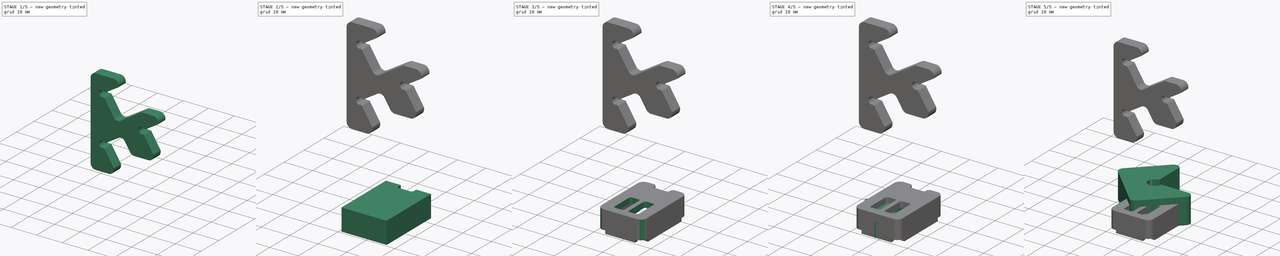
[diagram: build sequence overview — one tinted view per stage of 5, left to right]
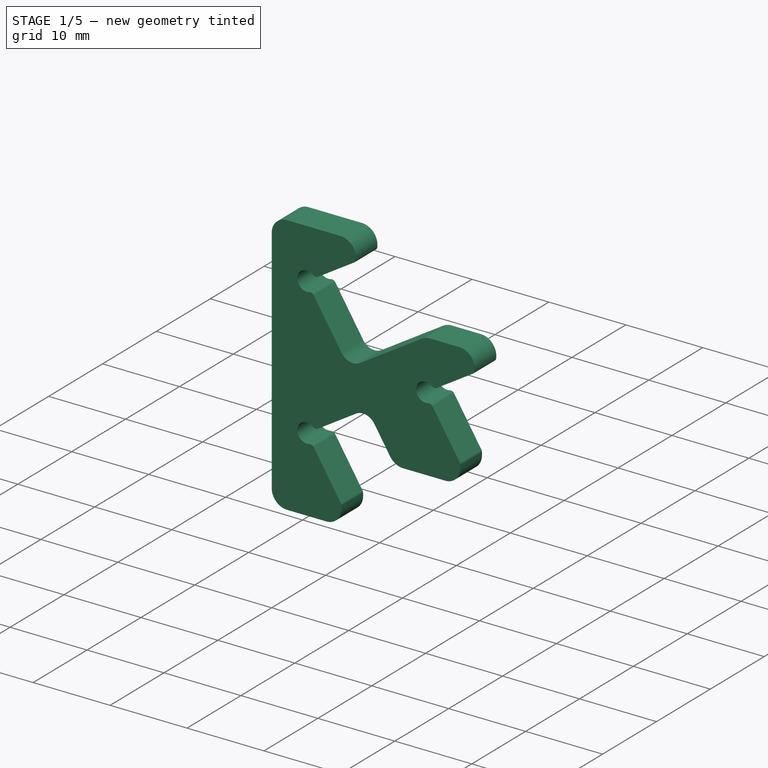
[diagram: stage 1 of 5 — iso view after this stage's code; geometry added in this stage tinted green]
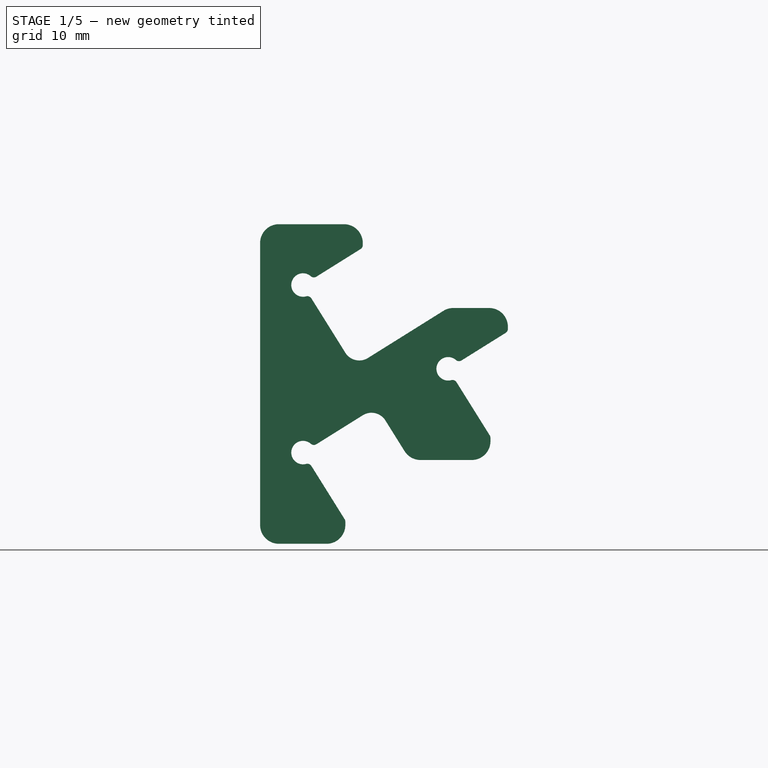
[diagram: stage 1 of 5 — front view after this stage's code; geometry added in this stage tinted green]
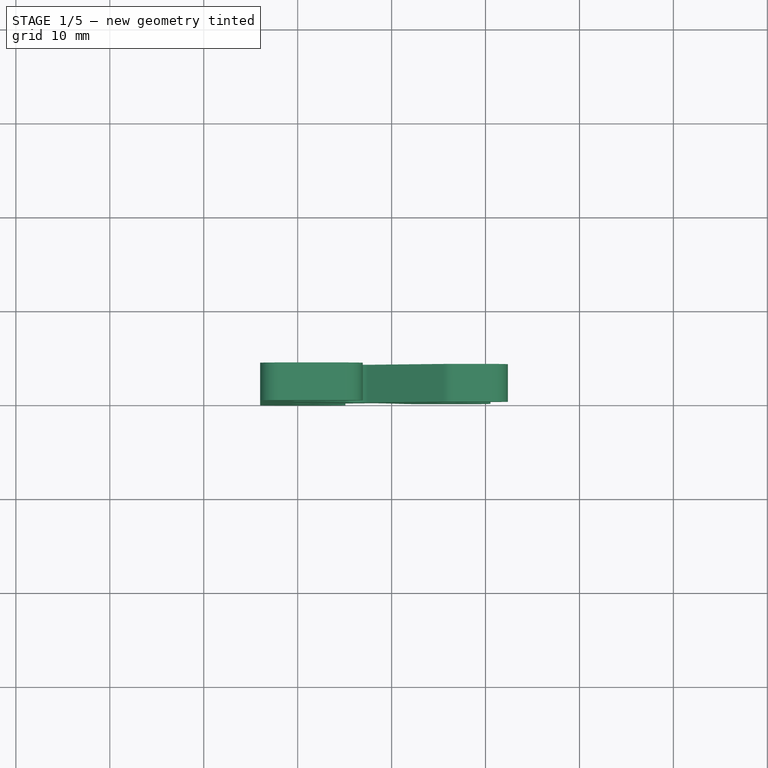
[diagram: stage 1 of 5 — top view after this stage's code; geometry added in this stage tinted green]
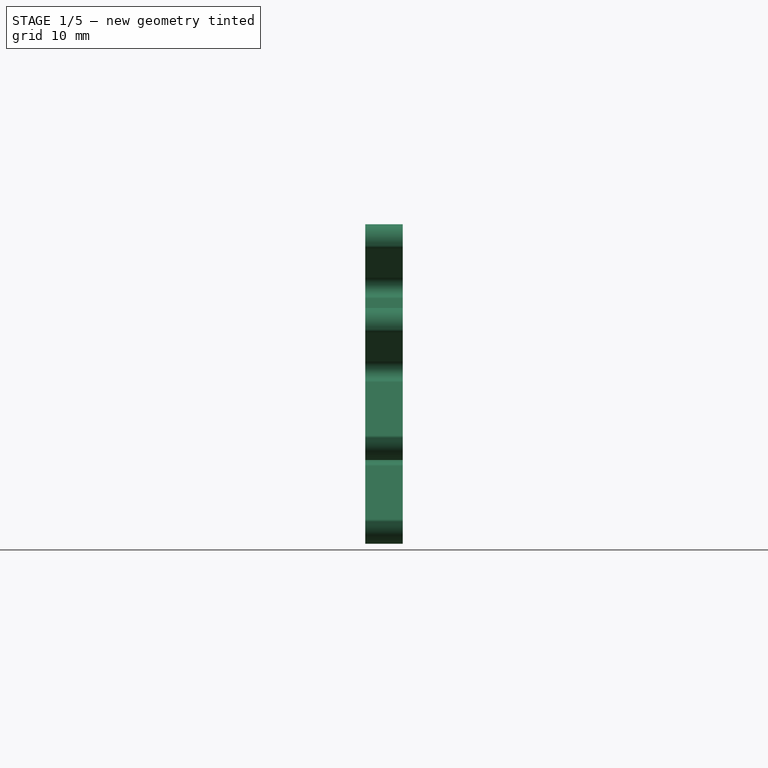
[diagram: stage 1 of 5 — right view after this stage's code; geometry added in this stage tinted green]
FCSTD DOCUMENT  (FreeCAD 1.1R20260223 (Git shallow))
Label: 3DP
License: All rights reserved
LicenseURL: https://en.wikipedia.org/wiki/All_rights_reserved
objects: PartDesign::Fillet×13, Sketcher::SketchObject×12, PartDesign::Pocket×7, App::Point×5, PartDesign::Pad×5, PartDesign::Body×5
note: 104 computed .brp shape members not serialized (recipe doc carries the construction recipe); baked Part::Feature solids carry a one-line shape summary decoded from their .brp

FEATURE [App::Point] Origin047  label="Origin054"
  Role = Origin
FEATURE [Sketcher::SketchObject] Sketch
  ArcFitTolerance = 1e-06
  AttachmentSupport = -> [Origin046]
  ExternalTypes = [0]
  FullyConstrained = true
  MakeInternals = false
  MapMode = 5
  Placement = pos=(0,0,0) rot=(1,0,0;1.5708rad)
  sketch-geometry (38):
    g0: GeomPoint [constr] X=-6.15 Y=54.04 Z=0
    g1: GeomPoint [constr] X=-6.15 Y=36.2 Z=0
    g2: GeomPoint [constr] X=9.3 Y=45.12 Z=0
    g3: LineSegment [constr] StartX=-6.15 StartY=54.04 StartZ=0 EndX=-6.15 EndY=36.2 EndZ=0
    g4: LineSegment StartX=-14 StartY=27.2487 StartZ=0 EndX=-14 EndY=61.2715 EndZ=0
    g5: GeomPoint [constr] X=-8.53 Y=56.42 Z=0
    g6: ArcOfCircle [constr] CenterX=-6.15 CenterY=54.04 CenterZ=0 NormalX=0 NormalY=0 NormalZ=1 AngleXU=0 Radius=3.36583 StartAngle=2.35619 EndAngle=2.9147
    g7: LineSegment [constr] StartX=-9.42956 StartY=54.7971 StartZ=0 EndX=-3.0692 EndY=58.7715 EndZ=0
    g8: LineSegment [constr] StartX=-9.42956 StartY=54.7971 StartZ=0 EndX=-4.92525 EndY=47.5887 EndZ=0
    g9: GeomPoint [constr] X=-8.53 Y=38.58 Z=0
    g10: GeomPoint [constr] X=6.92 Y=47.5 Z=0
    g11: ArcOfCircle [constr] CenterX=-6.15 CenterY=36.2 CenterZ=0 NormalX=0 NormalY=0 NormalZ=1 AngleXU=0 Radius=3.36583 StartAngle=2.35619 EndAngle=2.9147
    g12: ArcOfCircle [constr] CenterX=9.3 CenterY=45.12 CenterZ=0 NormalX=0 NormalY=0 NormalZ=1 AngleXU=0 Radius=3.36583 StartAngle=2.35619 EndAngle=2.9147
    g13: LineSegment [constr] StartX=-9.42956 StartY=36.9571 StartZ=0 EndX=-3.0692 EndY=40.9315 EndZ=0
    g14: LineSegment [constr] StartX=-9.42956 StartY=36.9571 StartZ=0 EndX=-4.92525 EndY=29.7487 EndZ=0
    g15: LineSegment [constr] StartX=6.02044 StartY=45.8771 StartZ=0 EndX=12.3808 EndY=49.8515 EndZ=0
    g16: LineSegment [constr] StartX=6.02044 StartY=45.8771 StartZ=0 EndX=10.5248 EndY=38.6687 EndZ=0
    g17: ArcOfCircle CenterX=-9.42956 CenterY=54.7971 CenterZ=0 NormalX=0 NormalY=0 NormalZ=1 AngleXU=0 Radius=1.25 StartAngle=0.558505 EndAngle=5.27089
    g18: ArcOfCircle CenterX=6.02044 CenterY=45.8771 CenterZ=0 NormalX=0 NormalY=0 NormalZ=1 AngleXU=0 Radius=1.25 StartAngle=0.558505 EndAngle=5.27089
    g19: ArcOfCircle CenterX=-9.42956 CenterY=36.9571 CenterZ=0 NormalX=0 NormalY=0 NormalZ=1 AngleXU=0 Radius=1.25 StartAngle=0.558505 EndAngle=5.27089
    g20: LineSegment StartX=-8.3695 StartY=55.4595 StartZ=0 EndX=-3.0692 EndY=58.7715 EndZ=0
    g21: LineSegment StartX=6.68284 StartY=44.8171 StartZ=0 EndX=10.5248 EndY=38.6687 EndZ=0
    g22: LineSegment StartX=-8.76716 StartY=35.8971 StartZ=0 EndX=-4.92525 EndY=29.7487 EndZ=0
    g23: LineSegment StartX=-8.76716 StartY=53.7371 StartZ=0 EndX=-4.92525 EndY=47.5887 EndZ=0
    g24: LineSegment StartX=-8.3695 StartY=37.6195 StartZ=0 EndX=-3.0692 EndY=40.9315 EndZ=0
    g25: ArcOfCircle CenterX=-3.44116 CenterY=48.5161 CenterZ=0 NormalX=0 NormalY=0 NormalZ=1 AngleXU=0 Radius=1.75 StartAngle=3.7001 EndAngle=5.27089
    g26: ArcOfCircle CenterX=-2.14184 CenterY=39.4475 CenterZ=0 NormalX=0 NormalY=0 NormalZ=1 AngleXU=0 Radius=1.75 StartAngle=0.558505 EndAngle=2.1293
    g27: LineSegment StartX=5.99922 StartY=52.3515 StartZ=0 EndX=-2.51381 EndY=47.032 EndZ=0
    g28: LineSegment StartX=1.97049 StartY=36.1687 StartZ=0 EndX=-0.657759 EndY=40.3748 EndZ=0
    g29: LineSegment StartX=7.0805 StartY=46.5395 StartZ=0 EndX=12.3808 EndY=49.8515 EndZ=0
    g30: LineSegment StartX=-3.0692 StartY=58.7715 StartZ=0 EndX=-3.0692 EndY=61.2715 EndZ=0
    g31: LineSegment StartX=-4.92525 StartY=29.7487 StartZ=0 EndX=-4.92525 EndY=27.2487 EndZ=0
    g32: LineSegment StartX=12.3808 StartY=49.8515 StartZ=0 EndX=12.3808 EndY=52.3515 EndZ=0
    g33: LineSegment StartX=10.5248 StartY=38.6687 StartZ=0 EndX=10.5248 EndY=36.1687 EndZ=0
    g34: LineSegment StartX=12.3808 StartY=52.3515 StartZ=0 EndX=5.99922 EndY=52.3515 EndZ=0
    g35: LineSegment StartX=10.5248 StartY=36.1687 StartZ=0 EndX=1.97049 EndY=36.1687 EndZ=0
    g36: LineSegment StartX=-3.0692 StartY=61.2715 StartZ=0 EndX=-14 EndY=61.2715 EndZ=0
    g37: LineSegment StartX=-4.92525 StartY=27.2487 StartZ=0 EndX=-14 EndY=27.2487 EndZ=0
  constraints (99):
    c: Coincident(g3,g0)
    c: Coincident(g3,g1)
    c: Vertical(g3)
    c: Distance(g-1,g3) = 6.15
    c: DistanceX(g-2,g2) = 9.3
    c: DistanceY(g-1,g1) = 36.2
    c: DistanceY(g-1,g0) = 54.04
    c: DistanceY(g-1,g2) = 45.12
    c: Vertical(g4)
    c: Distance(g-1,g4) = 14
    c: DistanceX(g5,g0) = 2.38
    c: DistanceY(g0,g5) = 2.38
    c: Coincident(g6,g0)
    c: Coincident(g6,g5)
    c: Angle(g6) = 0.558505
    c: Coincident(g7,g6)
    c: Angle(g-1,g7) = 0.558505
    c: Coincident(g8,g6)
    c: Angle(g8,g7) = 1.5708
    c: Distance(g7) = 7.5
    c: Distance(g8) = 8.5
    c: DistanceY(g1,g9) = 2.38
    c: DistanceX(g9,g1) = 2.38
    c: DistanceY(g2,g10) = 2.38
    c: DistanceX(g10,g2) = 2.38
    c: Coincident(g11,g1)
    c: Coincident(g11,g9)
    c: Coincident(g12,g2)
    c: Coincident(g12,g10)
    c: Angle(g11) = 0.558505
    c: Angle(g12) = 0.558505
    c: Coincident(g13,g11)
    c: Coincident(g14,g11)
    c: Coincident(g15,g12)
    c: Coincident(g16,g12)
    c: Parallel(g7,g15)
    c: Parallel(g7,g13)
    c: Parallel(g8,g16)
    c: Parallel(g8,g14)
    c: Equal(g7,g15)
    c: Equal(g7,g13)
    c: Equal(g8,g16)
    c: Equal(g8,g14)
    c: Coincident(g17,g6)
    c: PointOnObject(g17,g7)
    c: PointOnObject(g17,g8)
    c: Coincident(g18,g12)
    c: PointOnObject(g18,g15)
    c: PointOnObject(g18,g16)
    c: Coincident(g19,g11)
    c: PointOnObject(g19,g13)
    c: PointOnObject(g19,g14)
    c: Radius(g17) = 1.25
    c: Equal(g17,g18)
    c: Equal(g17,g19)
    c: Coincident(g20,g17)
    c: Coincident(g20,g7)
    c: Coincident(g21,g18)
    c: Coincident(g21,g16)
    c: Coincident(g22,g19)
    c: Coincident(g22,g14)
    c: Coincident(g23,g17)
    c: Coincident(g23,g8)
    c: Coincident(g24,g19)
    c: Coincident(g24,g13)
    c: Tangent(g25,g8) = -1.5708
    c: Tangent(g26,g13) = 1.5708
    c: Radius(g25) = 1.75
    c: Equal(g26,g25)
    c: Angle(g25) = 1.5708
    c: Angle(g26) = 1.5708
    c: Tangent(g25,g27) = 1.5708
    c: Tangent(g26,g28) = -1.5708
    c: Coincident(g29,g18)
    c: Coincident(g29,g15)
    c: Coincident(g30,g7)
    c: Vertical(g30)
    c: Coincident(g31,g14)
    c: Vertical(g31)
    c: Coincident(g32,g15)
    c: Vertical(g32)
    c: Coincident(g33,g16)
    c: Vertical(g33)
    c: Coincident(g34,g32)
    c: Horizontal(g34)
    c: Coincident(g35,g33)
    c: Horizontal(g35)
    c: Coincident(g36,g30)
    c: Horizontal(g36)
    c: Coincident(g37,g31)
    c: Horizontal(g37)
    c: Coincident(g4,g36)
    c: Coincident(g37,g4)
    c: Coincident(g27,g34)
    c: Coincident(g28,g35)
    c: Distance(g32,g32) = 2.5
    c: Equal(g33,g32)
    c: Equal(g32,g30)
    c: Equal(g30,g31)
FEATURE [PartDesign::Pad] Pad
  Direction = (0,-1,2e-16)
  Length = 4
  Length2 = 10
  Profile = -> Sketch
  ReferenceAxis = -> Sketch [N_Axis]
  Refine = true
  Reversed = true
  SideType = 0
  Suppressed = false
  Type = 0
  Type2 = 0
FEATURE [PartDesign::Fillet] Fillet002
  Base = -> Pad [Edge5,Edge20,Edge41,Edge50]
  BaseFeature = -> Pad
  Radius = 0.5
  Refine = true
  SupportTransform = false
  Suppressed = false
  UseAllEdges = false
FEATURE [PartDesign::Fillet] Fillet003
  Base = -> Fillet002 [Edge72,Edge70,Edge69,Edge71,Edge32,Edge3]
  BaseFeature = -> Fillet002
  Radius = 0.5
  Refine = true
  SupportTransform = false
  Suppressed = false
  UseAllEdges = false
FEATURE [PartDesign::Fillet] Fillet004
  Base = -> Fillet003 [Edge72,Edge74,Edge76,Edge70,Edge79,Edge96]
  BaseFeature = -> Fillet003
  Radius = 2
  Refine = true
  SupportTransform = false
  Suppressed = false
  UseAllEdges = false
FEATURE [PartDesign::Body] Body001  label="PreAmp Shield"
  AllowCompound = false
  Group = -> [Sketch003,Pad001,Sketch004,Pocket002,Sketch006,Pocket003,Sketch007,Pocket004,Sketch008,Pocket005,Sketch009,Pocket006,Sketch010,Pocket007,Fillet,Fillet001,Fillet011]
  Origin = -> Origin026
  Placement = pos=(0,0,7.7) rot=(1,0,0;3.14159rad)
  Tip = -> Fillet011
FEATURE [PartDesign::Fillet] Fillet012
  Base = -> Fillet004 [Edge72,Edge102]
  BaseFeature = -> Fillet004
  Radius = 2
  Refine = true
  SupportTransform = false
  Suppressed = false
  UseAllEdges = false
FEATURE [PartDesign::Body] Body  label="Kinematic Mount Aligner"
  AllowCompound = false
  Group = -> [Sketch,Pad,Fillet002,Fillet003,Fillet004,Fillet012]
  Origin = -> Origin046
  Placement = pos=(0,45.12,0) rot=(1,0,0;1.5708rad)
  Tip = -> Fillet012
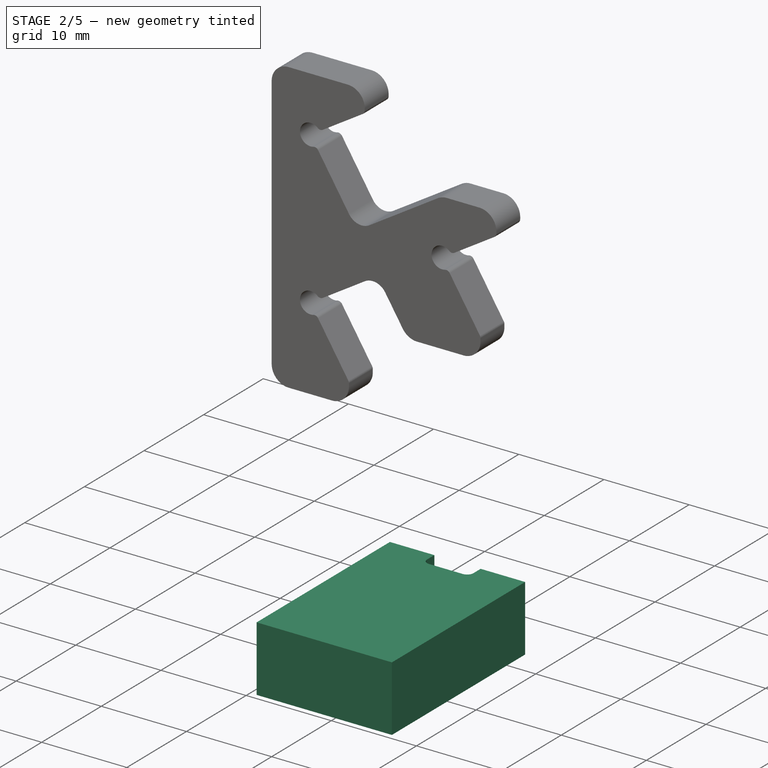
[diagram: stage 2 of 5 — iso view after this stage's code; geometry added in this stage tinted green]
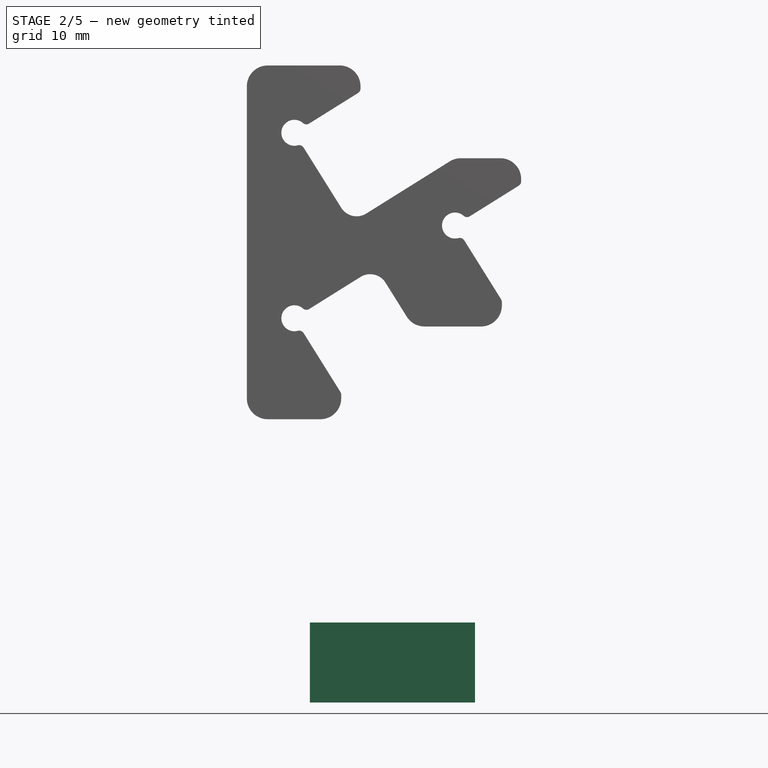
[diagram: stage 2 of 5 — front view after this stage's code; geometry added in this stage tinted green]
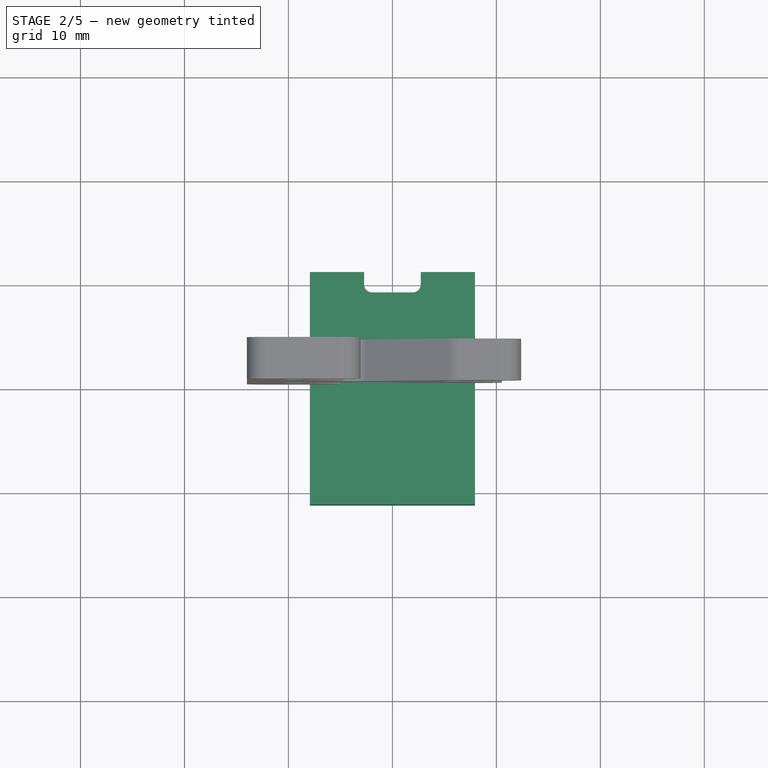
[diagram: stage 2 of 5 — top view after this stage's code; geometry added in this stage tinted green]
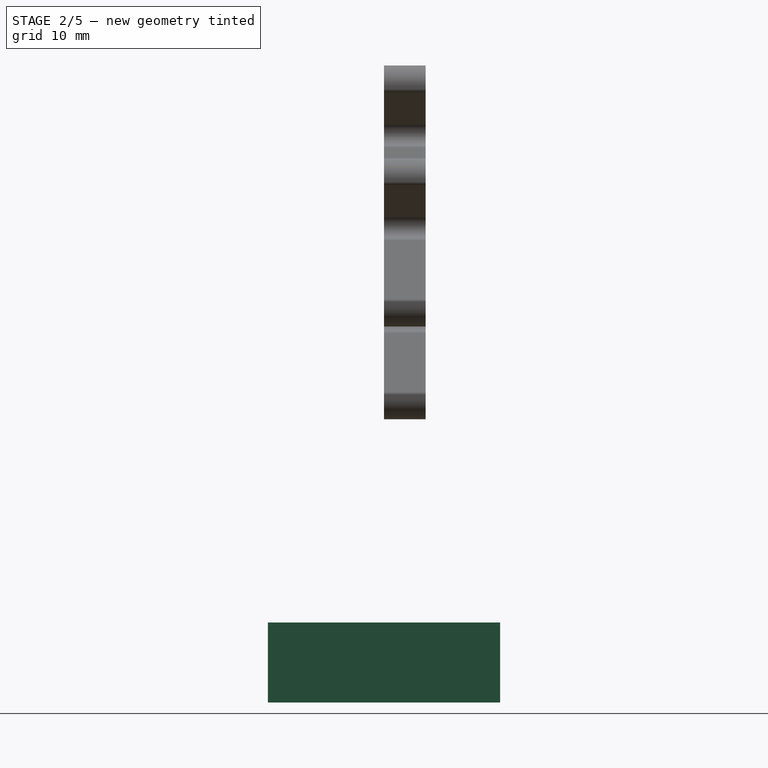
[diagram: stage 2 of 5 — right view after this stage's code; geometry added in this stage tinted green]
FEATURE [App::Point] Origin027  label="Origin035"
  Role = Origin
FEATURE [Sketcher::SketchObject] Sketch003
  ArcFitTolerance = 1e-06
  AttachmentSupport = -> [Origin026]
  ExternalTypes = [0]
  FullyConstrained = true
  MakeInternals = false
  MapMode = 5
  sketch-geometry (4):
    g0: LineSegment StartX=7.94 StartY=11.17 StartZ=0 EndX=-7.94 EndY=11.17 EndZ=0
    g1: LineSegment StartX=-7.94 StartY=11.17 StartZ=0 EndX=-7.94 EndY=-11.17 EndZ=0
    g2: LineSegment StartX=-7.94 StartY=-11.17 StartZ=0 EndX=7.94 EndY=-11.17 EndZ=0
    g3: LineSegment StartX=7.94 StartY=-11.17 StartZ=0 EndX=7.94 EndY=11.17 EndZ=0
  constraints (12):
    c: Coincident(g0,g1)
    c: Coincident(g1,g2)
    c: Coincident(g2,g3)
    c: Coincident(g3,g0)
    c: Horizontal(g0)
    c: Horizontal(g2)
    c: Vertical(g1)
    c: Vertical(g3)
    c: DistanceY(g1,g1) = 22.34
    c: DistanceX(g0,g0) = 15.88
    c: Distance(g-1,g0) = 11.17
    c: Distance(g-1,g1) = 7.94
FEATURE [PartDesign::Pad] Pad001
  Direction = (0,0,1)
  Length = 7.7
  Length2 = 10
  Profile = -> Sketch003
  ReferenceAxis = -> Sketch003 [N_Axis]
  Refine = true
  SideType = 0
  Suppressed = false
  Type = 0
  Type2 = 0
FEATURE [Sketcher::SketchObject] Sketch004
  ArcFitTolerance = 1e-06
  AttachmentSupport = -> [Origin026]
  ExternalTypes = [0]
  FullyConstrained = true
  MakeInternals = false
  MapMode = 5
  sketch-geometry (8):
    g0: LineSegment StartX=-3.69 StartY=8.67 StartZ=0 EndX=3.69 EndY=8.67 EndZ=0
    g1: LineSegment StartX=5.44 StartY=6.92 StartZ=0 EndX=5.44 EndY=-6.92 EndZ=0
    g2: LineSegment StartX=3.69 StartY=-8.67 StartZ=0 EndX=-3.69 EndY=-8.67 EndZ=0
    g3: LineSegment StartX=-5.44 StartY=-6.92 StartZ=0 EndX=-5.44 EndY=6.92 EndZ=0
    g4: ArcOfCircle CenterX=-3.69 CenterY=6.92 CenterZ=0 NormalX=0 NormalY=0 NormalZ=1 AngleXU=0 Radius=1.75 StartAngle=1.5708 EndAngle=3.14159
    g5: ArcOfCircle CenterX=3.69 CenterY=6.92 CenterZ=0 NormalX=0 NormalY=0 NormalZ=1 AngleXU=0 Radius=1.75 StartAngle=0 EndAngle=1.5708
    g6: ArcOfCircle CenterX=-3.69 CenterY=-6.92 CenterZ=0 NormalX=0 NormalY=0 NormalZ=1 AngleXU=0 Radius=1.75 StartAngle=3.14159 EndAngle=4.71239
    g7: ArcOfCircle CenterX=3.69 CenterY=-6.92 CenterZ=0 NormalX=0 NormalY=0 NormalZ=1 AngleXU=0 Radius=1.75 StartAngle=4.71239 EndAngle=6.28319
  constraints (20):
    c: Horizontal(g0)
    c: Vertical(g1)
    c: Horizontal(g2)
    c: Vertical(g3)
    c: Radius(g4) = 1.75
    c: Distance(g-1,g0) = 8.67
    c: Distance(g-1,g2) = 8.67
    c: Distance(g-1,g1) = 5.44
    c: Distance(g-1,g3) = 5.44
    c: Tangent(g0,g4) = 1.5708
    c: Tangent(g3,g4) = 1.5708
    c: Radius(g5) = 1.75
    c: Tangent(g1,g5) = 1.5708
    c: Tangent(g5,g0) = 1.5708
    c: Radius(g6) = 1.75
    c: Radius(g7) = 1.75
    c: Tangent(g6,g3) = 1.5708
    c: Tangent(g2,g6) = 1.5708
    c: Tangent(g7,g1) = 1.5708
    c: Tangent(g7,g2) = 1.5708
FEATURE [Sketcher::SketchObject] Sketch006
  ArcFitTolerance = 1e-06
  AttachmentSupport = -> [Origin026]
  ExternalTypes = [0]
  FullyConstrained = true
  MakeInternals = false
  MapMode = 5
  sketch-geometry (14):
    g0: LineSegment StartX=5.99 StartY=6.92 StartZ=0 EndX=5.99 EndY=-6.92 EndZ=0
    g1: LineSegment StartX=3.69 StartY=-9.22 StartZ=0 EndX=-3.69 EndY=-9.22 EndZ=0
    g2: LineSegment StartX=-5.99 StartY=-6.92 StartZ=0 EndX=-5.99 EndY=6.92 EndZ=0
    g3: ArcOfCircle CenterX=-3.69 CenterY=6.92 CenterZ=0 NormalX=0 NormalY=0 NormalZ=1 AngleXU=0 Radius=2.3 StartAngle=1.5708 EndAngle=3.14159
    g4: ArcOfCircle CenterX=3.69 CenterY=6.92 CenterZ=0 NormalX=0 NormalY=0 NormalZ=1 AngleXU=0 Radius=2.3 StartAngle=0 EndAngle=1.5708
    g5: ArcOfCircle CenterX=-3.69 CenterY=-6.92 CenterZ=0 NormalX=0 NormalY=0 NormalZ=1 AngleXU=0 Radius=2.3 StartAngle=3.14159 EndAngle=4.71239
    g6: ArcOfCircle CenterX=3.69 CenterY=-6.92 CenterZ=0 NormalX=0 NormalY=0 NormalZ=1 AngleXU=0 Radius=2.3 StartAngle=4.71239 EndAngle=6.28319
    g7: LineSegment StartX=2.72 StartY=11.17 StartZ=0 EndX=2.72 EndY=9.97 EndZ=0
    g8: LineSegment StartX=-2.72 StartY=11.17 StartZ=0 EndX=-2.72 EndY=9.97 EndZ=0
    g9: LineSegment StartX=2.72 StartY=11.17 StartZ=0 EndX=-2.72 EndY=11.17 EndZ=0
    g10: LineSegment StartX=3.69 StartY=9.22 StartZ=0 EndX=3.47 EndY=9.22 EndZ=0
    g11: LineSegment StartX=-3.69 StartY=9.22 StartZ=0 EndX=-3.47 EndY=9.22 EndZ=0
    g12: ArcOfCircle CenterX=-3.47 CenterY=9.97 CenterZ=0 NormalX=0 NormalY=0 NormalZ=1 AngleXU=0 Radius=0.75 StartAngle=4.71239 EndAngle=6.28319
    g13: ArcOfCircle CenterX=3.47 CenterY=9.97 CenterZ=0 NormalX=0 NormalY=0 NormalZ=1 AngleXU=0 Radius=0.75 StartAngle=3.14159 EndAngle=4.71239
  constraints (37):
    c: Vertical(g0)
    c: Horizontal(g1)
    c: Vertical(g2)
    c: Distance(g-1,g0) = 5.99
    c: Tangent(g2,g3) = 1.5708
    c: Radius(g4) = 2.3
    c: Tangent(g0,g4) = 1.5708
    c: Tangent(g5,g2) = 1.5708
    c: Tangent(g1,g5) = 1.5708
    c: Tangent(g6,g0) = 1.5708
    c: Tangent(g6,g1) = 1.5708
    c: Vertical(g7)
    c: Vertical(g8)
    c: Distance(g-1,g7) = 2.72
    c: Distance(g-1,g8) = 2.72
    c: Coincident(g9,g7)
    c: Coincident(g9,g8)
    c: Horizontal(g9)
    c: Distance(g-1,g9) = 11.17
    c: Coincident(g10,g4)
    c: Horizontal(g10)
    c: Coincident(g11,g3)
    c: Horizontal(g11)
    c: Radius(g13) = 0.75
    c: Radius(g12) = 0.75
    c: Distance(g-1,g11) = 9.22
    c: Distance(g-1,g10) = 9.22
    c: Tangent(g12,g11) = -1.5708
    c: Tangent(g12,g8) = 1.5708
    c: Tangent(g13,g10) = 1.5708
    c: Tangent(g13,g7) = -1.5708
    c: Angle(g3) = 1.5708
    c: Angle(g4) = 1.5708
    c: Equal(g6,g4)
    c: Equal(g4,g3)
    c: Equal(g3,g5)
    c: Symmetric(g0,g2,g-1)
FEATURE [Sketcher::SketchObject] Sketch007
  ArcFitTolerance = 1e-06
  AttachmentSupport = -> [Origin026]
  ExternalTypes = [0]
  FullyConstrained = true
  MakeInternals = false
  MapMode = 5
  sketch-geometry (4):
    g0: LineSegment StartX=2.72 StartY=11.17 StartZ=0 EndX=-2.72 EndY=11.17 EndZ=0
    g1: LineSegment StartX=-2.72 StartY=11.17 StartZ=0 EndX=-2.72 EndY=8.5 EndZ=0
    g2: LineSegment StartX=-2.72 StartY=8.5 StartZ=0 EndX=2.72 EndY=8.5 EndZ=0
    g3: LineSegment StartX=2.72 StartY=8.5 StartZ=0 EndX=2.72 EndY=11.17 EndZ=0
  constraints (12):
    c: Coincident(g0,g1)
    c: Coincident(g1,g2)
    c: Coincident(g2,g3)
    c: Coincident(g3,g0)
    c: Horizontal(g0)
    c: Horizontal(g2)
    c: Vertical(g1)
    c: Vertical(g3)
    c: Distance(g-1,g3) = 2.72
    c: Distance(g-1,g1) = 2.72
    c: Distance(g-1,g0) = 11.17
    c: Distance(g-1,g2) = 8.5
FEATURE [Sketcher::SketchObject] Sketch008
  ArcFitTolerance = 1e-06
  AttachmentSupport = -> [Origin026]
  ExternalTypes = [0]
  FullyConstrained = true
  MakeInternals = false
  MapMode = 5
  sketch-geometry (6):
    g0: LineSegment StartX=2.72 StartY=11.17 StartZ=0 EndX=2.72 EndY=9.97 EndZ=0
    g1: LineSegment StartX=-2.72 StartY=11.17 StartZ=0 EndX=-2.72 EndY=9.97 EndZ=0
    g2: LineSegment StartX=2.72 StartY=11.17 StartZ=0 EndX=-2.72 EndY=11.17 EndZ=0
    g3: LineSegment StartX=1.97 StartY=9.22 StartZ=0 EndX=-1.97 EndY=9.22 EndZ=0
    g4: ArcOfCircle CenterX=1.97 CenterY=9.97 CenterZ=0 NormalX=0 NormalY=0 NormalZ=1 AngleXU=0 Radius=0.75 StartAngle=4.71239 EndAngle=6.28319
    g5: ArcOfCircle CenterX=-1.97 CenterY=9.97 CenterZ=0 NormalX=0 NormalY=0 NormalZ=1 AngleXU=0 Radius=0.75 StartAngle=3.14159 EndAngle=4.71239
  constraints (16):
    c: Vertical(g1)
    c: Coincident(g2,g0)
    c: Coincident(g2,g1)
    c: Horizontal(g2)
    c: Horizontal(g3)
    c: Vertical(g0)
    c: Distance(g-1,g2) = 11.17
    c: Distance(g-1,g3) = 9.22
    c: Distance(g-1,g1) = 2.72
    c: Distance(g-1,g0) = 2.72
    c: Radius(g4) = 0.75
    c: Tangent(g4,g0) = 1.5708
    c: Tangent(g4,g3) = 1.5708
    c: Tangent(g1,g5) = -1.5708
    c: Tangent(g5,g3) = 1.5708
    c: Radius(g5) = 0.75
FEATURE [PartDesign::Pocket] Pocket002
  BaseFeature = -> Pad001
  Direction = (0,0,-1)
  Length = 5.7
  Length2 = 5
  Profile = -> Sketch004
  ReferenceAxis = -> Sketch004 [N_Axis]
  Refine = true
  Reversed = true
  SideType = 0
  Suppressed = false
  Type = 0
  Type2 = 0
FEATURE [PartDesign::Pocket] Pocket003
  BaseFeature = -> Pocket002
  Direction = (0,0,-1)
  Length = 2.52
  Length2 = 5
  Profile = -> Sketch006
  ReferenceAxis = -> Sketch006 [N_Axis]
  Refine = true
  Reversed = true
  SideType = 0
  Suppressed = false
  Type = 0
  Type2 = 0
FEATURE [PartDesign::Pocket] Pocket004
  BaseFeature = -> Pocket003
  Direction = (0,0,-1)
  Length = 5.7
  Length2 = 5
  Profile = -> Sketch007
  ReferenceAxis = -> Sketch007 [N_Axis]
  Refine = true
  Reversed = true
  SideType = 0
  Suppressed = false
  Type = 0
  Type2 = 0
FEATURE [PartDesign::Pocket] Pocket005
  BaseFeature = -> Pocket004
  Direction = (0,0,-1)
  Length = 9
  Length2 = 5
  Profile = -> Sketch008
  ReferenceAxis = -> Sketch008 [N_Axis]
  Refine = true
  Reversed = true
  SideType = 0
  Suppressed = false
  Type = 1
  Type2 = 0
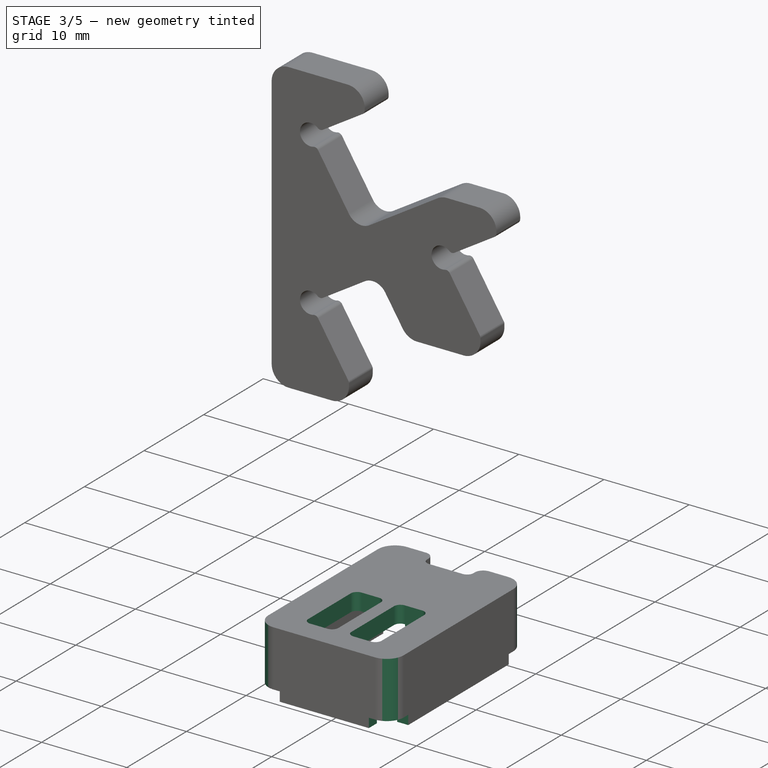
[diagram: stage 3 of 5 — iso view after this stage's code; geometry added in this stage tinted green]
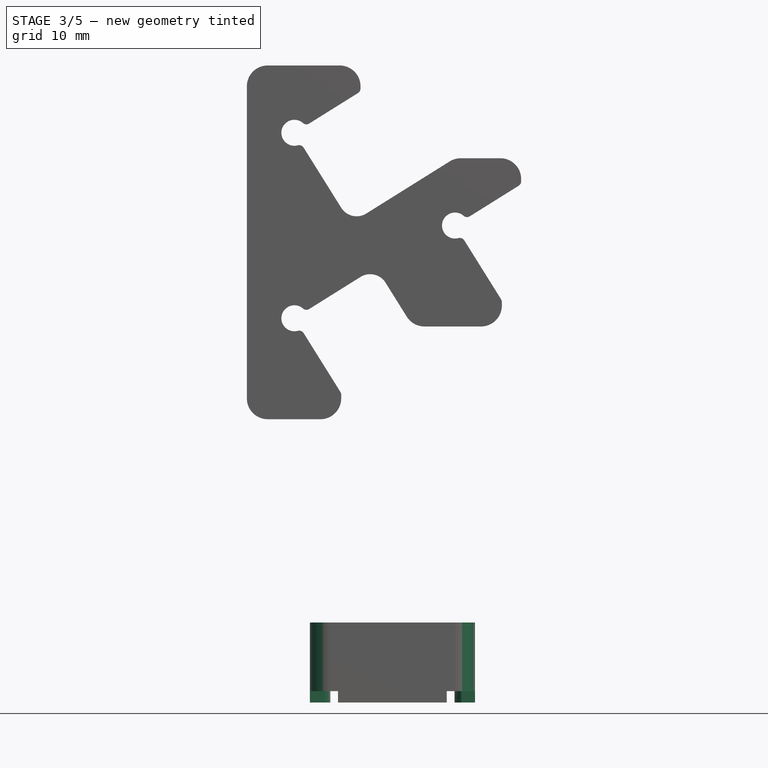
[diagram: stage 3 of 5 — front view after this stage's code; geometry added in this stage tinted green]
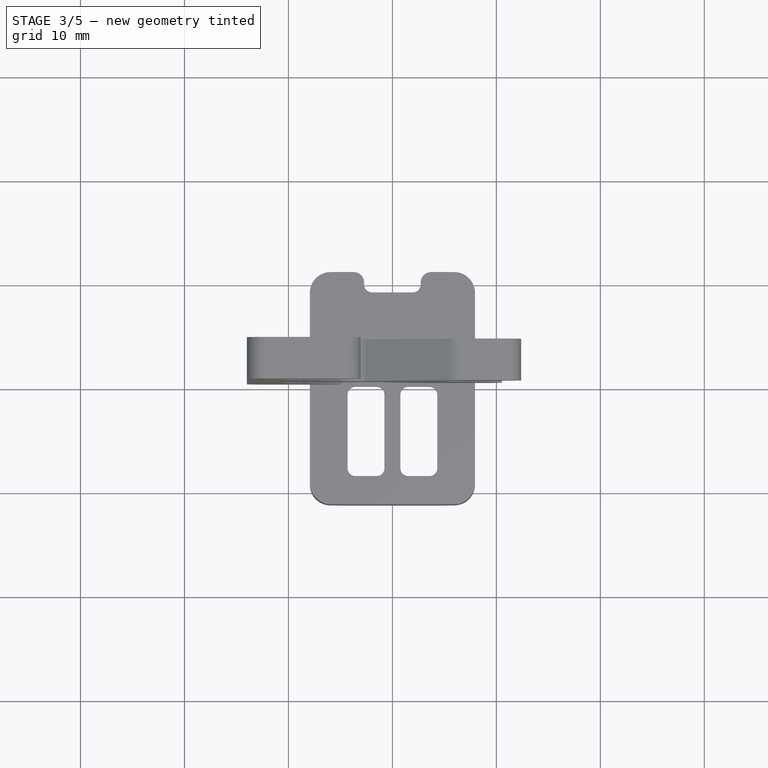
[diagram: stage 3 of 5 — top view after this stage's code; geometry added in this stage tinted green]
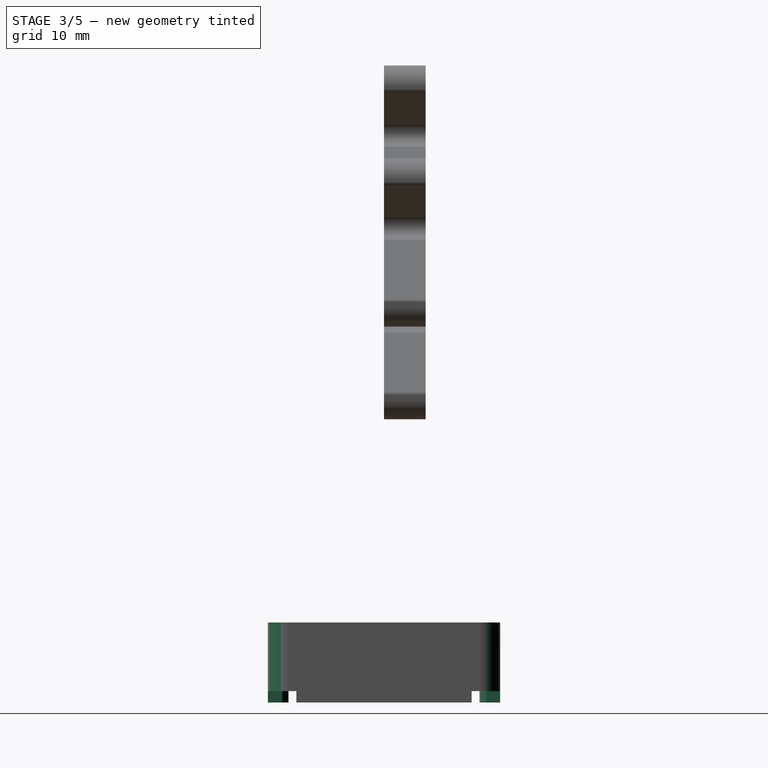
[diagram: stage 3 of 5 — right view after this stage's code; geometry added in this stage tinted green]
FEATURE [Sketcher::SketchObject] Sketch009
  ArcFitTolerance = 1e-06
  AttachmentOffset = pos=(0,0,7.7) rot=(0,0,1;0rad)
  AttachmentSupport = -> [Origin026]
  ExternalTypes = [0]
  FullyConstrained = true
  MakeInternals = false
  MapMode = 5
  Placement = pos=(0,0,7.7) rot=(0,0,1;0rad)
  sketch-geometry (18):
    g0: LineSegment StartX=-0.77 StartY=-0.58 StartZ=0 EndX=-0.77 EndY=-7.7 EndZ=0
    g1: LineSegment StartX=-4.31 StartY=-7.7 StartZ=0 EndX=-4.31 EndY=-0.58 EndZ=0
    g2: LineSegment StartX=0.77 StartY=-0.58 StartZ=0 EndX=0.77 EndY=-7.7 EndZ=0
    g3: LineSegment StartX=4.31 StartY=-7.7 StartZ=0 EndX=4.31 EndY=-0.58 EndZ=0
    g4: ArcOfCircle CenterX=-3.56 CenterY=-0.58 CenterZ=0 NormalX=0 NormalY=0 NormalZ=1 AngleXU=0 Radius=0.75 StartAngle=1.5708 EndAngle=3.14159
    g5: ArcOfCircle CenterX=-1.52 CenterY=-0.58 CenterZ=0 NormalX=0 NormalY=0 NormalZ=1 AngleXU=0 Radius=0.75 StartAngle=0 EndAngle=1.5708
    g6: ArcOfCircle CenterX=-3.56 CenterY=-7.7 CenterZ=0 NormalX=0 NormalY=0 NormalZ=1 AngleXU=0 Radius=0.75 StartAngle=3.14159 EndAngle=4.71239
    g7: ArcOfCircle CenterX=-1.52 CenterY=-7.7 CenterZ=0 NormalX=0 NormalY=0 NormalZ=1 AngleXU=0 Radius=0.75 StartAngle=4.71239 EndAngle=6.28319
    g8: ArcOfCircle CenterX=1.52 CenterY=-7.7 CenterZ=0 NormalX=0 NormalY=0 NormalZ=1 AngleXU=0 Radius=0.75 StartAngle=3.14159 EndAngle=4.71239
    g9: ArcOfCircle CenterX=3.56 CenterY=-7.7 CenterZ=0 NormalX=0 NormalY=0 NormalZ=1 AngleXU=0 Radius=0.75 StartAngle=4.71239 EndAngle=6.28319
    g10: ArcOfCircle CenterX=1.52 CenterY=-0.58 CenterZ=0 NormalX=0 NormalY=0 NormalZ=1 AngleXU=0 Radius=0.75 StartAngle=1.5708 EndAngle=3.14159
    g11: ArcOfCircle CenterX=3.56 CenterY=-0.58 CenterZ=0 NormalX=0 NormalY=0 NormalZ=1 AngleXU=0 Radius=0.75 StartAngle=0 EndAngle=1.5708
    g12: GeomPoint [constr] X=-2.54 Y=-4.14 Z=0
    g13: GeomPoint [constr] X=2.54 Y=-4.14 Z=0
    g14: LineSegment StartX=-3.56 StartY=0.17 StartZ=0 EndX=-1.52 EndY=0.17 EndZ=0
    g15: LineSegment StartX=-3.56 StartY=-8.45 StartZ=0 EndX=-1.52 EndY=-8.45 EndZ=0
    g16: LineSegment StartX=1.52 StartY=0.17 StartZ=0 EndX=3.56 EndY=0.17 EndZ=0
    g17: LineSegment StartX=1.52 StartY=-8.45 StartZ=0 EndX=3.56 EndY=-8.45 EndZ=0
  constraints (51):
    c: Vertical(g1)
    c: Vertical(g2)
    c: Vertical(g3)
    c: Equal(g1,g0)
    c: Equal(g2,g3)
    c: Radius(g4) = 0.75
    c: Angle(g4) = 1.5708
    c: Equal(g4,g5)
    c: DistanceX(g-2,g12) = -2.54
    c: DistanceX(g-2,g13) = 2.54
    c: DistanceY(g-1,g12) = -4.14
    c: DistanceY(g-1,g13) = -4.14
    c: Angle(g5) = 1.5708
    c: Angle(g6) = 1.5708
    c: Angle(g7) = 1.5708
    c: Angle(g8) = 1.5708
    c: Angle(g9) = 1.5708
    c: Angle(g10) = 1.5708
    c: Angle(g11) = 1.5708
    c: Equal(g4,g10)
    c: Equal(g4,g11)
    c: Equal(g6,g4)
    c: Equal(g7,g4)
    c: Equal(g4,g8)
    c: Equal(g4,g9)
    c: Horizontal(g14)
    c: Tangent(g4,g14) = 1.5708
    c: Tangent(g14,g5) = 1.5708
    c: Coincident(g4,g1)
    c: Coincident(g0,g5)
    c: DistanceX(g14,g14) = 2.04
    c: Tangent(g6,g15) = -1.5708
    c: Tangent(g15,g7) = -1.5708
    c: Coincident(g7,g0)
    c: Equal(g15,g14)
    c: Symmetric(g1,g0,g12)
    c: Horizontal(g16)
    c: Horizontal(g17)
    c: Tangent(g10,g16) = 1.5708
    c: Tangent(g16,g11) = 1.5708
    c: Tangent(g8,g17) = -1.5708
    c: Tangent(g17,g9) = -1.5708
    c: Coincident(g2,g10)
    c: Coincident(g3,g11)
    c: Coincident(g8,g2)
    c: Equal(g17,g16)
    c: Symmetric(g2,g3,g13)
    c: Equal(g16,g14)
    c: Equal(g0,g2)
    c: Distance(g12,g14) = 4.31
    c: Coincident(g1,g6)
FEATURE [PartDesign::Pocket] Pocket006
  BaseFeature = -> Pocket005
  Direction = (0,0,-1)
  Length = 2
  Length2 = 5
  Profile = -> Sketch009
  ReferenceAxis = -> Sketch009 [N_Axis]
  Refine = true
  SideType = 0
  Suppressed = false
  Type = 0
  Type2 = 0
FEATURE [Sketcher::SketchObject] Sketch010
  ArcFitTolerance = 1e-06
  AttachmentSupport = -> [Origin026]
  ExternalTypes = [0]
  FullyConstrained = true
  MakeInternals = false
  MapMode = 5
  sketch-geometry (28):
    g0: LineSegment StartX=5.23 StartY=13.43 StartZ=0 EndX=10.23 EndY=13.43 EndZ=0
    g1: LineSegment StartX=10.23 StartY=13.43 StartZ=0 EndX=10.23 EndY=8.43 EndZ=0
    g2: LineSegment [constr] StartX=5.23 StartY=13.43 StartZ=0 EndX=5.23 EndY=8.43 EndZ=0
    g3: LineSegment [constr] StartX=10.23 StartY=8.43 StartZ=0 EndX=5.23 EndY=8.43 EndZ=0
    g4: ArcOfCircle CenterX=5.23 CenterY=8.43 CenterZ=0 NormalX=0 NormalY=0 NormalZ=1 AngleXU=0 Radius=1.4 StartAngle=1.5708 EndAngle=6.28319
    g5: LineSegment StartX=6.63 StartY=8.43 StartZ=0 EndX=10.23 EndY=8.43 EndZ=0
    g6: LineSegment StartX=5.23 StartY=9.83 StartZ=0 EndX=5.23 EndY=13.43 EndZ=0
    g7: LineSegment [constr] StartX=-5.23 StartY=8.43 StartZ=0 EndX=-5.23 EndY=13.43 EndZ=0
    g8: LineSegment StartX=-5.23 StartY=13.43 StartZ=0 EndX=-10.23 EndY=13.43 EndZ=0
    g9: LineSegment StartX=-10.23 StartY=13.43 StartZ=0 EndX=-10.23 EndY=8.43 EndZ=0
    g10: LineSegment [constr] StartX=-10.23 StartY=8.43 StartZ=0 EndX=-5.23 EndY=8.43 EndZ=0
    g11: LineSegment [constr] StartX=5.23 StartY=-8.43 StartZ=0 EndX=5.23 EndY=-13.43 EndZ=0
    g12: LineSegment StartX=5.23 StartY=-13.43 StartZ=0 EndX=10.23 EndY=-13.43 EndZ=0
    g13: LineSegment StartX=10.23 StartY=-13.43 StartZ=0 EndX=10.23 EndY=-8.43 EndZ=0
    g14: LineSegment [constr] StartX=10.23 StartY=-8.43 StartZ=0 EndX=5.23 EndY=-8.43 EndZ=0
    g15: LineSegment StartX=-10.23 StartY=-13.43 StartZ=0 EndX=-5.23 EndY=-13.43 EndZ=0
    g16: LineSegment [constr] StartX=-5.23 StartY=-13.43 StartZ=0 EndX=-5.23 EndY=-8.43 EndZ=0
    g17: LineSegment StartX=-10.23 StartY=-13.43 StartZ=0 EndX=-10.23 EndY=-8.43 EndZ=0
    g18: LineSegment [constr] StartX=-10.23 StartY=-8.43 StartZ=0 EndX=-5.23 EndY=-8.43 EndZ=0
    g19: ArcOfCircle CenterX=-5.23 CenterY=8.43 CenterZ=0 NormalX=0 NormalY=0 NormalZ=1 AngleXU=0 Radius=1.4 StartAngle=3.14159 EndAngle=7.85398
    g20: ArcOfCircle CenterX=-5.23 CenterY=-8.43 CenterZ=0 NormalX=0 NormalY=0 NormalZ=1 AngleXU=0 Radius=1.4 StartAngle=4.71239 EndAngle=9.42478
    g21: ArcOfCircle CenterX=5.23 CenterY=-8.43 CenterZ=0 NormalX=0 NormalY=0 NormalZ=1 AngleXU=0 Radius=1.4 StartAngle=0 EndAngle=4.71239
    g22: LineSegment StartX=-10.23 StartY=-8.43 StartZ=0 EndX=-6.63 EndY=-8.43 EndZ=0
    g23: LineSegment StartX=-5.23 StartY=-13.43 StartZ=0 EndX=-5.23 EndY=-9.83 EndZ=0
    g24: LineSegment StartX=5.23 StartY=-13.43 StartZ=0 EndX=5.23 EndY=-9.83 EndZ=0
    g25: LineSegment StartX=6.63 StartY=-8.43 StartZ=0 EndX=10.23 EndY=-8.43 EndZ=0
    g26: LineSegment StartX=-10.23 StartY=8.43 StartZ=0 EndX=-6.63 EndY=8.43 EndZ=0
    g27: LineSegment StartX=-5.23 StartY=13.43 StartZ=0 EndX=-5.23 EndY=9.83 EndZ=0
  constraints (77):
    c: Horizontal(g0)
    c: Coincident(g1,g0)
    c: Vertical(g1)
    c: DistanceX(g-2,g0) = 5.23
    c: DistanceY(g-1,g1) = 8.43
    c: DistanceX(g0,g0) = 5
    c: Equal(g0,g1)
    c: Coincident(g2,g0)
    c: Vertical(g2)
    c: Coincident(g3,g1)
    c: Horizontal(g3)
    c: Coincident(g2,g3)
    c: Coincident(g4,g2)
    c: PointOnObject(g4,g3)
    c: PointOnObject(g4,g2)
    c: Radius(g4) = 1.4
    c: Coincident(g5,g4)
    c: Coincident(g5,g1)
    c: Coincident(g6,g4)
    c: Coincident(g6,g0)
    c: Vertical(g7)
    c: Coincident(g8,g7)
    c: Horizontal(g8)
    c: Coincident(g9,g8)
    c: Vertical(g9)
    c: Coincident(g10,g9)
    c: Coincident(g10,g7)
    c: Horizontal(g10)
    c: Vertical(g11)
    c: Coincident(g12,g11)
    c: Horizontal(g12)
    c: Coincident(g13,g12)
    c: Vertical(g13)
    c: Coincident(g14,g13)
    c: Horizontal(g14)
    c: Coincident(g11,g14)
    c: Horizontal(g15)
    c: Coincident(g16,g15)
    c: Vertical(g16)
    c: Coincident(g17,g15)
    c: Vertical(g17)
    c: Coincident(g18,g17)
    c: Coincident(g18,g16)
    c: Horizontal(g18)
    c: Equal(g0,g13)
    c: Equal(g13,g12)
    c: Equal(g12,g15)
    c: Equal(g15,g17)
    c: Equal(g17,g9)
    c: Equal(g9,g8)
    c: Symmetric(g2,g16,g-1)
    c: Symmetric(g7,g11,g-1)
    c: Symmetric(g7,g2,g-2)
    c: Coincident(g21,g11)
    c: PointOnObject(g21,g11)
    c: PointOnObject(g21,g14)
    c: Equal(g4,g21)
    c: Equal(g21,g20)
    c: Equal(g20,g19)
    c: PointOnObject(g20,g16)
    c: PointOnObject(g20,g18)
    c: Coincident(g16,g20)
    c: Coincident(g7,g19)
    c: PointOnObject(g19,g10)
    c: PointOnObject(g19,g7)
    c: Coincident(g22,g17)
    c: Coincident(g22,g20)
    c: Coincident(g23,g15)
    c: Coincident(g23,g20)
    c: Coincident(g24,g11)
    c: Coincident(g24,g21)
    c: Coincident(g25,g21)
    c: Coincident(g25,g13)
    c: Coincident(g26,g9)
    c: Coincident(g26,g19)
    c: Coincident(g27,g7)
    c: Coincident(g27,g19)
FEATURE [PartDesign::Pocket] Pocket007
  BaseFeature = -> Pocket006
  Direction = (0,0,-1)
  Length = 1.1
  Length2 = 5
  Profile = -> Sketch010
  ReferenceAxis = -> Sketch010 [N_Axis]
  Refine = true
  Reversed = true
  SideType = 0
  Suppressed = false
  Type = 0
  Type2 = 0
FEATURE [PartDesign::Fillet] Fillet
  Base = -> Pocket007 [Edge2,Edge128]
  BaseFeature = -> Pocket007
  Radius = 1
  Refine = true
  SupportTransform = false
  Suppressed = false
  UseAllEdges = false
FEATURE [PartDesign::Fillet] Fillet001
  Base = -> Fillet [Edge6,Edge81,Edge73,Edge53]
  BaseFeature = -> Fillet
  Radius = 2
  Refine = true
  SupportTransform = false
  Suppressed = false
  UseAllEdges = false
FEATURE [PartDesign::Body] Body012  label="Coarse Piezo Aligner 2"
  AllowCompound = false
  Group = -> [Sketch034,Pad011,Sketch035,Pocket,Fillet009,Fillet010]
  Origin = -> Origin052
  Placement = pos=(0,0,4) rot=(1,0,0;3.14159rad)
  Tip = -> Fillet010
FEATURE [PartDesign::Fillet] Fillet011
  Base = -> Fillet001 [Edge63,Edge91]
  BaseFeature = -> Fillet001
  Radius = 0.5
  Refine = true
  SupportTransform = false
  Suppressed = false
  UseAllEdges = false
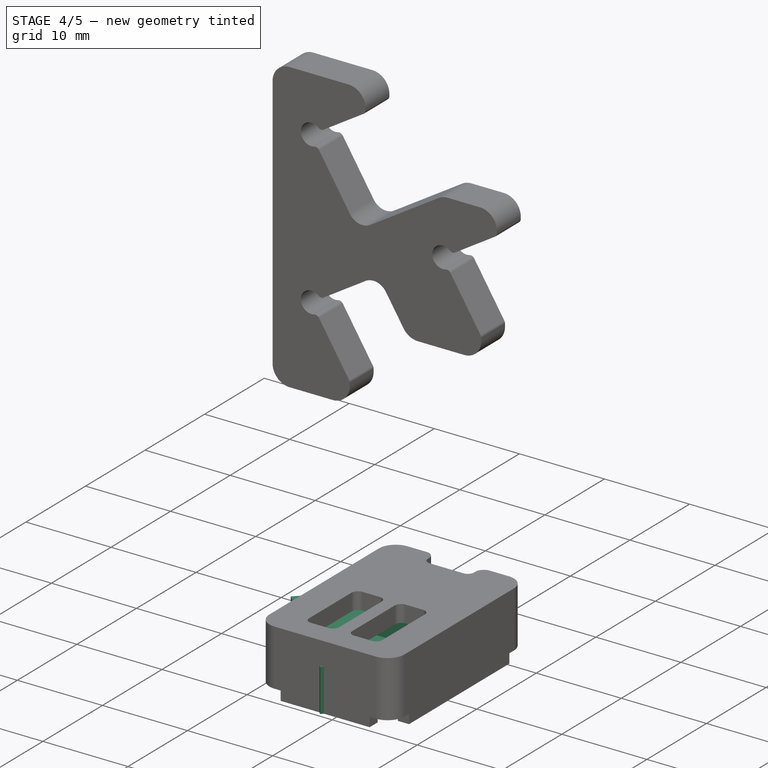
[diagram: stage 4 of 5 — iso view after this stage's code; geometry added in this stage tinted green]
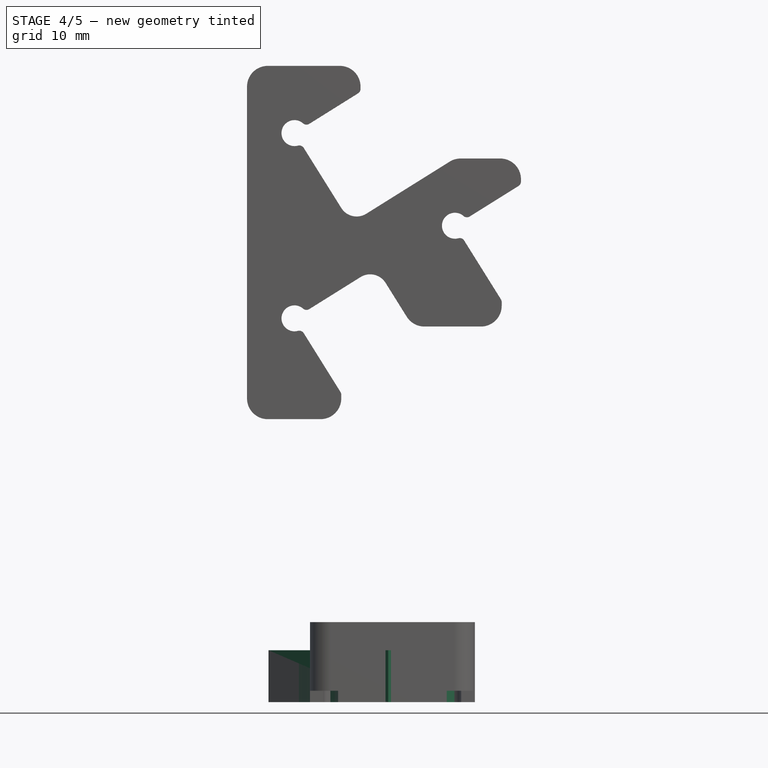
[diagram: stage 4 of 5 — front view after this stage's code; geometry added in this stage tinted green]
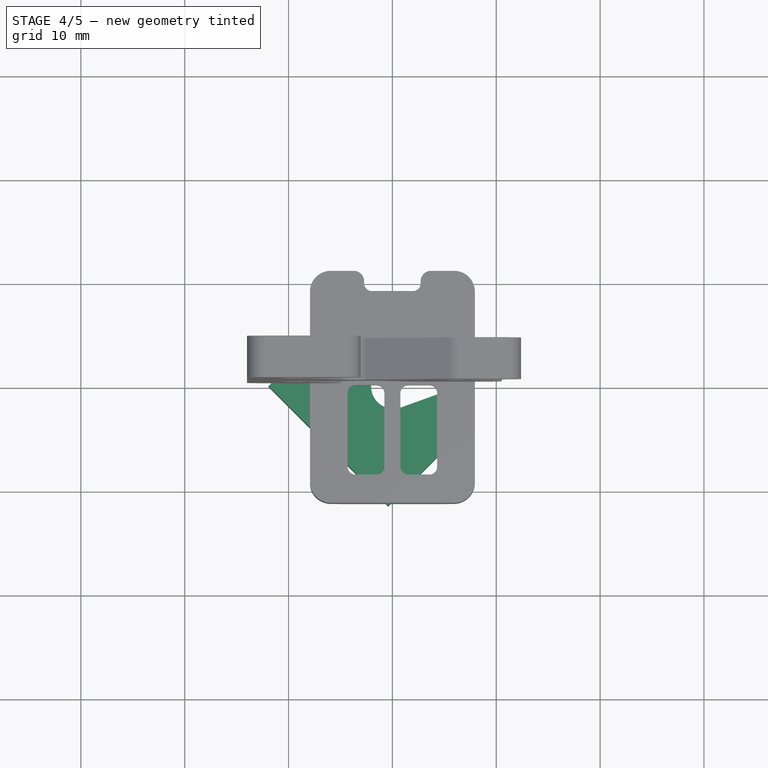
[diagram: stage 4 of 5 — top view after this stage's code; geometry added in this stage tinted green]
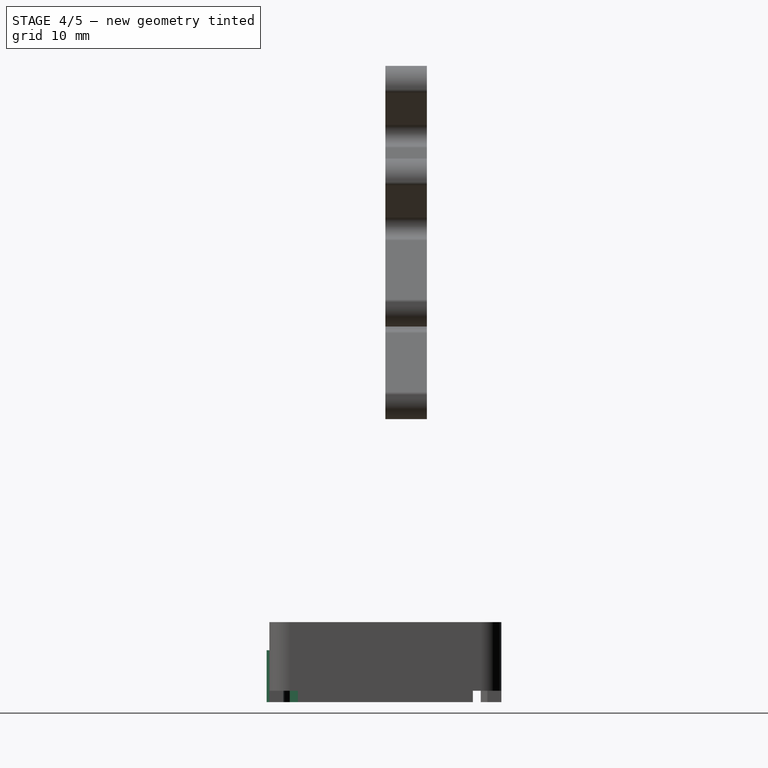
[diagram: stage 4 of 5 — right view after this stage's code; geometry added in this stage tinted green]
FEATURE [App::Point] Origin049  label="Origin057"
  Role = Origin
FEATURE [Sketcher::SketchObject] Sketch032
  ArcFitTolerance = 1e-06
  AttachmentSupport = -> [Origin048]
  ExternalTypes = [0]
  FullyConstrained = true
  MakeInternals = false
  MapMode = 5
  sketch-geometry (11):
    g0: GeomPoint [constr] X=-2.38 Y=-2.38 Z=0
    g1: LineSegment [constr] StartX=-2.38 StartY=-2.38 StartZ=0 EndX=-2.38 EndY=6.12 EndZ=0
    g2: LineSegment [constr] StartX=-2.38 StartY=-2.38 StartZ=0 EndX=5.12 EndY=-2.38 EndZ=0
    g3: ArcOfCircle CenterX=-2.38 CenterY=-2.38 CenterZ=0 NormalX=0 NormalY=0 NormalZ=1 AngleXU=0 Radius=1.25 StartAngle=1.5708 EndAngle=6.28319
    g4: LineSegment StartX=-2.38 StartY=-1.13 StartZ=0 EndX=-2.38 EndY=6.12 EndZ=0
    g5: LineSegment StartX=-1.13 StartY=-2.38 StartZ=0 EndX=5.12 EndY=-2.38 EndZ=0
    g6: LineSegment StartX=-11.9333 StartY=0.102233 StartZ=0 EndX=-0.397767 EndY=-11.4333 EndZ=0
    g7: LineSegment StartX=-2.38 StartY=6.12 StartZ=0 EndX=-4.14777 EndY=7.88777 EndZ=0
    g8: LineSegment StartX=5.12 StartY=-2.38 StartZ=0 EndX=6.88777 EndY=-4.14777 EndZ=0
    g9: LineSegment StartX=6.88777 StartY=-4.14777 StartZ=0 EndX=-0.397767 EndY=-11.4333 EndZ=0
    g10: LineSegment StartX=-4.14777 StartY=7.88777 StartZ=0 EndX=-11.9333 EndY=0.102233 EndZ=0
  constraints (30):
    c: DistanceX(g-2,g0) = -2.38
    c: DistanceY(g-1,g0) = -2.38
    c: Coincident(g1,g0)
    c: Vertical(g1)
    c: Coincident(g2,g0)
    c: Horizontal(g2)
    c: DistanceY(g1,g1) = 8.5
    c: DistanceX(g2,g2) = 7.5
    c: Coincident(g3,g0)
    c: PointOnObject(g3,g1)
    c: PointOnObject(g3,g2)
    c: Radius(g3) = 1.25
    c: Coincident(g4,g3)
    c: Coincident(g4,g1)
    c: Coincident(g5,g3)
    c: Coincident(g5,g2)
    c: Distance(g0,g6) = 5
    c: Coincident(g7,g1)
    c: Coincident(g8,g2)
    c: Coincident(g10,g7)
    c: Coincident(g6,g10)
    c: Coincident(g6,g9)
    c: Parallel(g9,g10)
    c: Coincident(g9,g8)
    c: Angle(g5,g8) = 2.35619
    c: Angle(g8,g9) = 1.5708
    c: Parallel(g7,g8)
    c: Parallel(g6,g8)
    c: Equal(g7,g8)
    c: Distance(g7,g7) = 2.5
FEATURE [PartDesign::Pad] Pad009
  Direction = (0,0,1)
  Length = 5
  Length2 = 10
  Profile = -> Sketch032
  ReferenceAxis = -> Sketch032 [N_Axis]
  Refine = true
  SideType = 0
  Suppressed = false
  Type = 0
  Type2 = 0
FEATURE [App::Point] Origin053
  Role = Origin
FEATURE [Sketcher::SketchObject] Sketch034
  ArcFitTolerance = 1e-06
  AttachmentSupport = -> [Origin052]
  ExternalTypes = [0]
  FullyConstrained = true
  MakeInternals = false
  MapMode = 5
  sketch-geometry (14):
    g0: GeomPoint [constr] X=-2.38 Y=-2.38 Z=0
    g1: LineSegment [constr] StartX=-2.38 StartY=-2.38 StartZ=0 EndX=-2.38 EndY=5.12 EndZ=0
    g2: LineSegment [constr] StartX=-2.38 StartY=-2.38 StartZ=0 EndX=5.12 EndY=-2.38 EndZ=0
    g3: LineSegment StartX=-10.4333 StartY=-1.39777 StartZ=0 EndX=-1.39777 EndY=-10.4333 EndZ=0
    g4: LineSegment [constr] StartX=5.12 StartY=-2.38 StartZ=0 EndX=5.12 EndY=-0.38 EndZ=0
    g5: LineSegment [constr] StartX=-2.38 StartY=5.12 StartZ=0 EndX=-0.38 EndY=5.12 EndZ=0
    g6: ArcOfCircle CenterX=0.1 CenterY=0.1 CenterZ=0 NormalX=0 NormalY=0 NormalZ=1 AngleXU=0 Radius=2.15 StartAngle=2.79648 EndAngle=5.05751
    g7: LineSegment StartX=-0.38 StartY=5.12 StartZ=0 EndX=-1.92323 EndY=0.827361 EndZ=0
    g8: LineSegment StartX=5.12 StartY=-0.38 StartZ=0 EndX=0.827361 EndY=-1.92323 EndZ=0
    g9: LineSegment StartX=-0.38 StartY=5.12 StartZ=0 EndX=-2.14777 EndY=6.88777 EndZ=0
    g10: LineSegment StartX=-2.14777 StartY=6.88777 StartZ=0 EndX=-10.4333 EndY=-1.39777 EndZ=0
    g11: LineSegment StartX=5.12 StartY=-0.38 StartZ=0 EndX=6.88777 EndY=-2.14777 EndZ=0
    g12: LineSegment StartX=6.88777 StartY=-2.14777 StartZ=0 EndX=-1.39777 EndY=-10.4333 EndZ=0
    g13: LineSegment [constr] StartX=-0.38 StartY=5.12 StartZ=0 EndX=5.12 EndY=-0.38 EndZ=0
  constraints (37):
    c: DistanceX(g-2,g0) = -2.38
    c: DistanceY(g-1,g0) = -2.38
    c: Coincident(g1,g0)
    c: Vertical(g1)
    c: Coincident(g2,g0)
    c: Horizontal(g2)
    c: DistanceX(g2,g2) = 7.5
    c: Distance(g0,g3) = 5
    c: Coincident(g4,g2)
    c: Vertical(g4)
    c: Coincident(g5,g1)
    c: Horizontal(g5)
    c: Radius(g6) = 2.15
    c: Equal(g1,g2)
    c: Equal(g4,g5)
    c: Coincident(g7,g5)
    c: Coincident(g8,g4)
    c: Tangent(g8,g6) = 1.5708
    c: Tangent(g6,g7) = -1.5708
    c: Distance(g5,g5) = 2
    c: Coincident(g9,g5)
    c: Coincident(g10,g9)
    c: Coincident(g11,g4)
    c: Coincident(g12,g11)
    c: Coincident(g3,g10)
    c: Coincident(g3,g12)
    c: Parallel(g11,g9)
    c: Angle(g10,g9) = 1.5708
    c: Parallel(g12,g10)
    c: Equal(g9,g11)
    c: Parallel(g9,g3)
    c: Coincident(g13,g5)
    c: Coincident(g13,g4)
    c: Parallel(g13,g9)
    c: Distance(g11,g11) = 2.5
    c: DistanceX(g-1,g6) = 0.1
    c: DistanceY(g-1,g6) = 0.1
FEATURE [PartDesign::Pad] Pad011
  Direction = (0,0,1)
  Length = 4
  Length2 = 10
  Profile = -> Sketch034
  ReferenceAxis = -> Sketch034 [N_Axis]
  Refine = true
  SideType = 0
  Suppressed = false
  Type = 0
  Type2 = 0
FEATURE [Sketcher::SketchObject] Sketch035
  ArcFitTolerance = 1e-06
  AttachmentSupport = -> [Origin052]
  ExternalTypes = [0]
  FullyConstrained = true
  MakeInternals = false
  MapMode = 5
  sketch-geometry (8):
    g0: GeomPoint [constr] X=-2.38 Y=-2.38 Z=0
    g1: LineSegment [constr] StartX=-2.38 StartY=-2.38 StartZ=0 EndX=-2.38 EndY=7.62 EndZ=0
    g2: LineSegment [constr] StartX=-2.38 StartY=-2.38 StartZ=0 EndX=7.62 EndY=-2.38 EndZ=0
    g3: ArcOfCircle CenterX=-2.38 CenterY=-2.38 CenterZ=0 NormalX=0 NormalY=0 NormalZ=1 AngleXU=0 Radius=1.25 StartAngle=1.5708 EndAngle=6.28319
    g4: LineSegment StartX=-2.38 StartY=-1.13 StartZ=0 EndX=-2.38 EndY=7.62 EndZ=0
    g5: LineSegment StartX=-1.13 StartY=-2.38 StartZ=0 EndX=7.62 EndY=-2.38 EndZ=0
    g6: LineSegment StartX=-2.38 StartY=7.62 StartZ=0 EndX=7.62 EndY=7.62 EndZ=0
    g7: LineSegment StartX=7.62 StartY=7.62 StartZ=0 EndX=7.62 EndY=-2.38 EndZ=0
  constraints (21):
    c: DistanceY(g0,g-1) = 2.38
    c: DistanceX(g0,g-1) = 2.38
    c: Coincident(g1,g0)
    c: Vertical(g1)
    c: Coincident(g2,g0)
    c: Horizontal(g2)
    c: Equal(g2,g1)
    c: Distance(g1,g1) = 10
    c: Coincident(g3,g0)
    c: PointOnObject(g3,g1)
    c: PointOnObject(g3,g2)
    c: Radius(g3) = 1.25
    c: Coincident(g4,g3)
    c: Coincident(g4,g1)
    c: Coincident(g5,g3)
    c: Coincident(g5,g2)
    c: Coincident(g6,g1)
    c: Horizontal(g6)
    c: Coincident(g7,g6)
    c: Coincident(g7,g2)
    c: Vertical(g7)
FEATURE [PartDesign::Pocket] Pocket
  BaseFeature = -> Pad011
  Direction = (0,0,-1)
  Length = 1.89
  Length2 = 5
  Profile = -> Sketch035
  ReferenceAxis = -> Sketch035 [N_Axis]
  Refine = true
  Reversed = true
  SideType = 0
  Suppressed = false
  Type = 0
  Type2 = 0
FEATURE [PartDesign::Body] Body010  label="Coarse Piezo Aligner 1"
  AllowCompound = false
  Group = -> [Sketch032,Pad009,Fillet007,Fillet008]
  Origin = -> Origin048
  Placement = pos=(0,0,0) rot=(0,0,1;-1.5708rad)
  Tip = -> Fillet008
FEATURE [PartDesign::Fillet] Fillet009
  Base = -> Pocket [Edge4,Edge28,Edge34,Edge26]
  BaseFeature = -> Pocket
  Radius = 0.5
  Refine = true
  SupportTransform = false
  Suppressed = false
  UseAllEdges = false
FEATURE [PartDesign::Fillet] Fillet010
  Base = -> Fillet009 [Edge3,Edge44,Edge22,Edge43]
  BaseFeature = -> Fillet009
  Radius = 2
  Refine = true
  SupportTransform = false
  Suppressed = false
  UseAllEdges = false
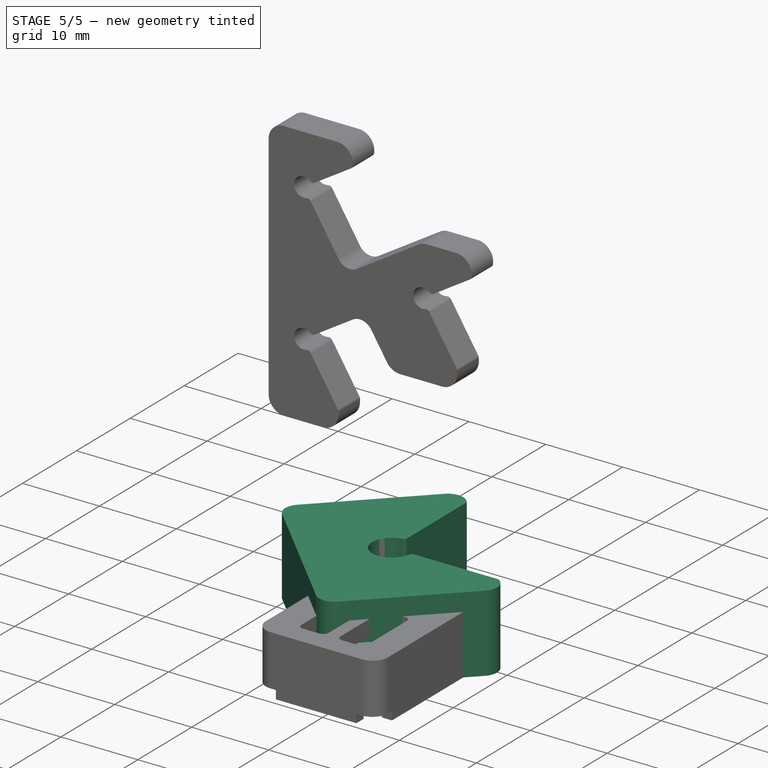
[diagram: stage 5 of 5 — iso view after this stage's code; geometry added in this stage tinted green]
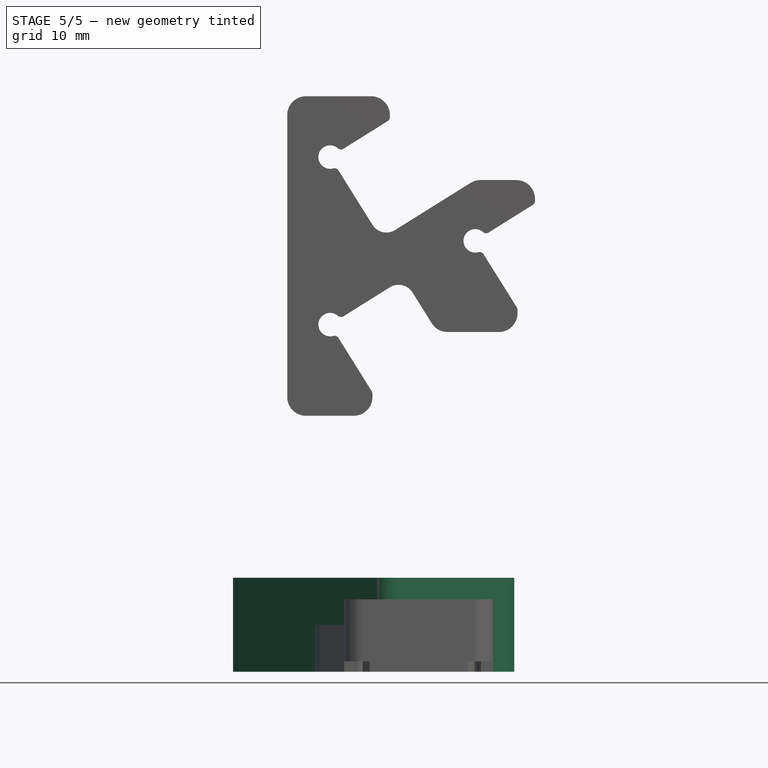
[diagram: stage 5 of 5 — front view after this stage's code; geometry added in this stage tinted green]
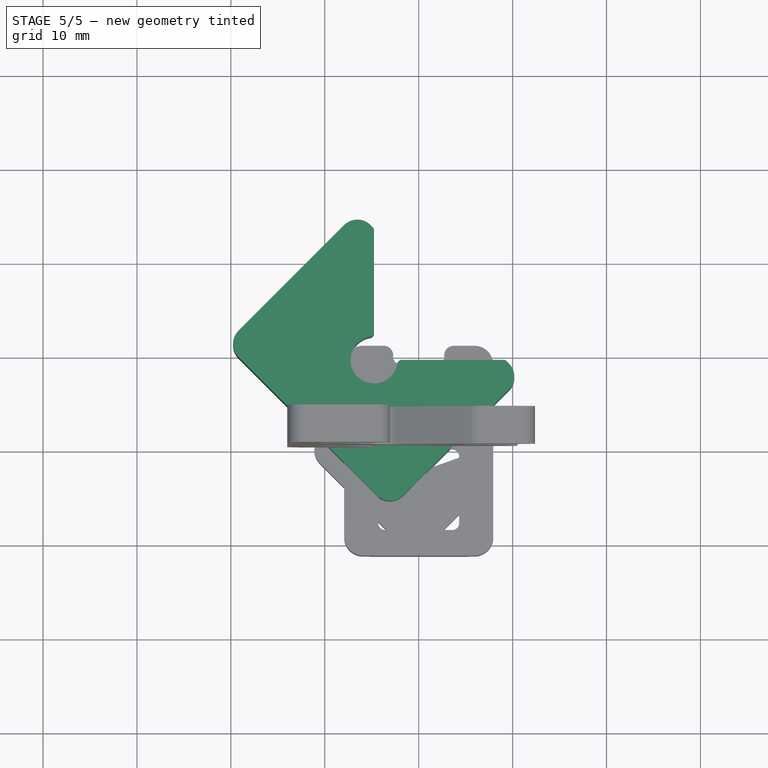
[diagram: stage 5 of 5 — top view after this stage's code; geometry added in this stage tinted green]
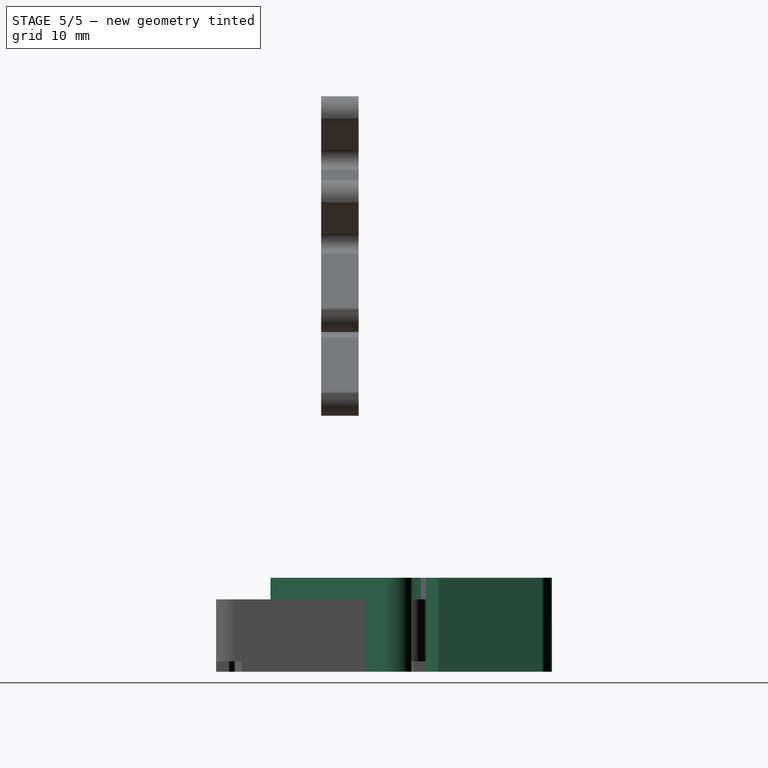
[diagram: stage 5 of 5 — right view after this stage's code; geometry added in this stage tinted green]
FEATURE [App::Point] Origin051  label="Origin060"
  Role = Origin
FEATURE [Sketcher::SketchObject] Sketch033
  ArcFitTolerance = 1e-06
  AttachmentSupport = -> [Origin050]
  ExternalTypes = [0]
  FullyConstrained = true
  MakeInternals = false
  MapMode = 5
  sketch-geometry (12):
    g0: GeomPoint [constr] X=0 Y=14.39 Z=0
    g1: GeomPoint [constr] X=-4.76 Y=9.63 Z=0
    g2: LineSegment [constr] StartX=-4.76 StartY=9.63 StartZ=0 EndX=-4.76 EndY=23.63 EndZ=0
    g3: LineSegment [constr] StartX=-4.76 StartY=9.63 StartZ=0 EndX=9.24 EndY=9.63 EndZ=0
    g4: ArcOfCircle CenterX=-4.76 CenterY=9.63 CenterZ=0 NormalX=0 NormalY=0 NormalZ=1 AngleXU=0 Radius=2.5 StartAngle=1.5708 EndAngle=6.28319
    g5: LineSegment StartX=-4.76 StartY=12.13 StartZ=0 EndX=-4.76 EndY=23.63 EndZ=0
    g6: LineSegment StartX=9.24 StartY=9.63 StartZ=0 EndX=-2.26 EndY=9.63 EndZ=0
    g7: LineSegment StartX=-20.5988 StartY=11.3267 StartZ=0 EndX=-3.0633 EndY=-6.20883 EndZ=0
    g8: LineSegment StartX=9.24 StartY=9.63 StartZ=0 EndX=11.0078 EndY=7.86223 EndZ=0
    g9: LineSegment StartX=11.0078 StartY=7.86223 StartZ=0 EndX=-3.0633 EndY=-6.20883 EndZ=0
    g10: LineSegment StartX=-4.76 StartY=23.63 StartZ=0 EndX=-6.52777 EndY=25.3978 EndZ=0
    g11: LineSegment StartX=-6.52777 StartY=25.3978 StartZ=0 EndX=-20.5988 EndY=11.3267 EndZ=0
  constraints (32):
    c: PointOnObject(g0,g-2)
    c: Distance(g0,g-1) = 14.39
    c: DistanceX(g1,g0) = 4.76
    c: DistanceY(g1,g0) = 4.76
    c: Coincident(g2,g1)
    c: Vertical(g2)
    c: Coincident(g3,g1)
    c: Horizontal(g3)
    c: DistanceY(g2,g2) = 14
    c: DistanceX(g3,g3) = 14
    c: Coincident(g4,g1)
    c: PointOnObject(g4,g2)
    c: PointOnObject(g4,g3)
    c: Coincident(g5,g4)
    c: Coincident(g5,g2)
    c: Coincident(g6,g3)
    c: Coincident(g6,g4)
    c: Radius(g4) = 2.5
    c: Distance(g1,g7) = 10
    c: Coincident(g8,g3)
    c: Coincident(g9,g8)
    c: Coincident(g10,g2)
    c: Coincident(g11,g10)
    c: Coincident(g7,g9)
    c: Coincident(g7,g11)
    c: Angle(g6,g8) = 2.35619
    c: Angle(g8,g9) = 1.5708
    c: Parallel(g9,g11)
    c: Parallel(g8,g10)
    c: Parallel(g10,g7)
    c: Equal(g8,g10)
    c: Distance(g10,g10) = 2.5
FEATURE [PartDesign::Pad] Pad010
  Direction = (0,0,1)
  Length = 10
  Length2 = 10
  Profile = -> Sketch033
  ReferenceAxis = -> Sketch033 [N_Axis]
  Refine = true
  SideType = 0
  Suppressed = false
  Type = 0
  Type2 = 0
FEATURE [PartDesign::Fillet] Fillet005
  Base = -> Pad010 [Edge1,Edge5,Edge2,Edge8]
  BaseFeature = -> Pad010
  Radius = 0.5
  Refine = true
  SupportTransform = false
  Suppressed = false
  UseAllEdges = false
FEATURE [PartDesign::Fillet] Fillet006
  Base = -> Fillet005 [Edge30,Edge36,Edge32,Edge34]
  BaseFeature = -> Fillet005
  Radius = 2
  Refine = true
  SupportTransform = false
  Suppressed = false
  UseAllEdges = false
FEATURE [PartDesign::Body] Body011  label="Fine Piezo Aligner"
  AllowCompound = false
  Group = -> [Sketch033,Pad010,Fillet005,Fillet006]
  Origin = -> Origin050
  Placement = pos=(0,-14.39,0) rot=(0,0,1;0rad)
  Tip = -> Fillet006
FEATURE [PartDesign::Fillet] Fillet007
  Base = -> Pad009 [Edge5,Edge8,Edge1,Edge11]
  BaseFeature = -> Pad009
  Radius = 0.5
  Refine = true
  SupportTransform = false
  Suppressed = false
  UseAllEdges = false
FEATURE [PartDesign::Fillet] Fillet008
  Base = -> Fillet007 [Edge3,Edge32,Edge18,Edge30]
  BaseFeature = -> Fillet007
  Radius = 2
  Refine = true
  SupportTransform = false
  Suppressed = false
  UseAllEdges = false
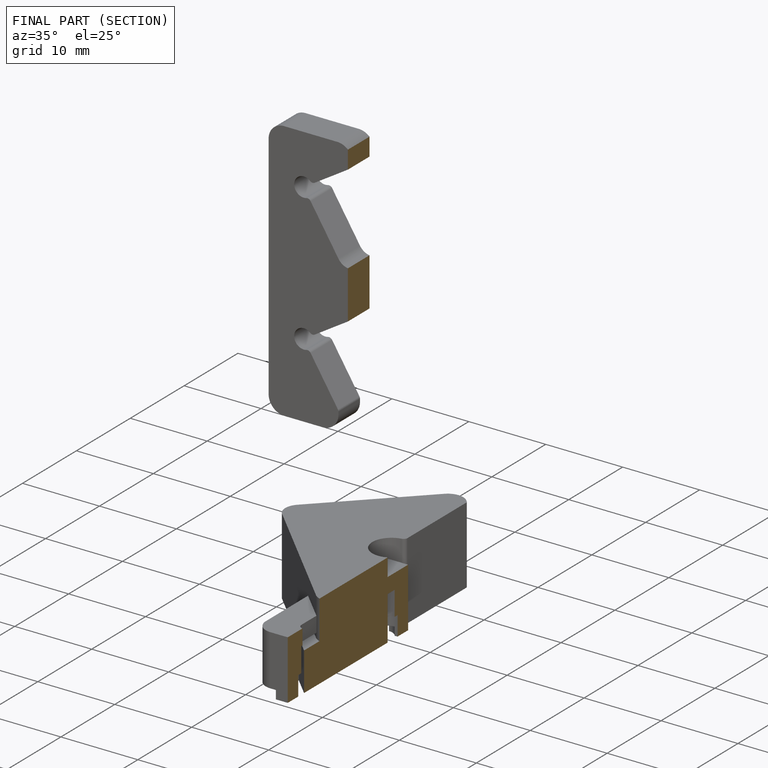
[diagram: finished part — half-section view (interior)]
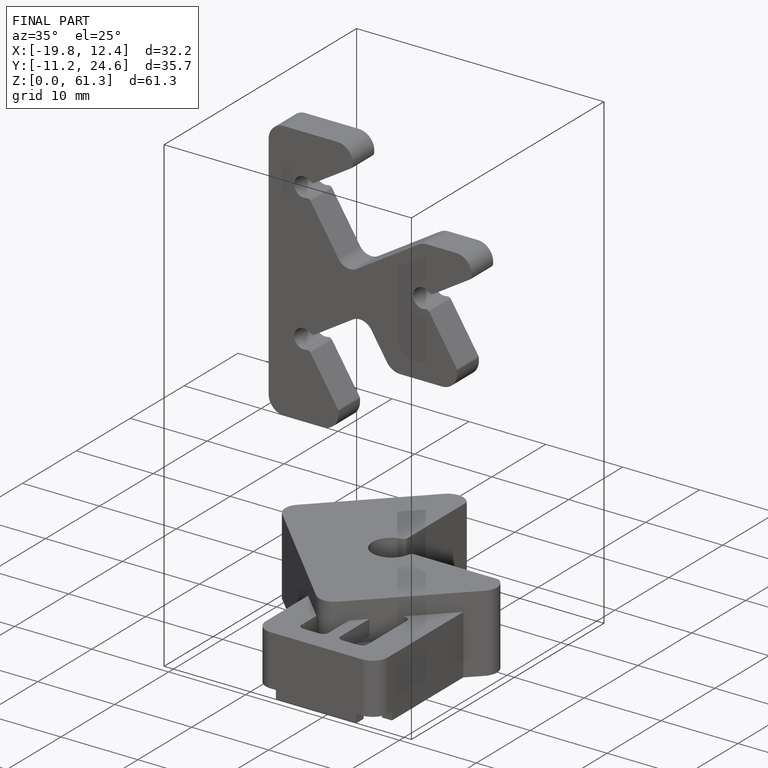
[diagram: finished part — iso view with bounding-box wireframe]
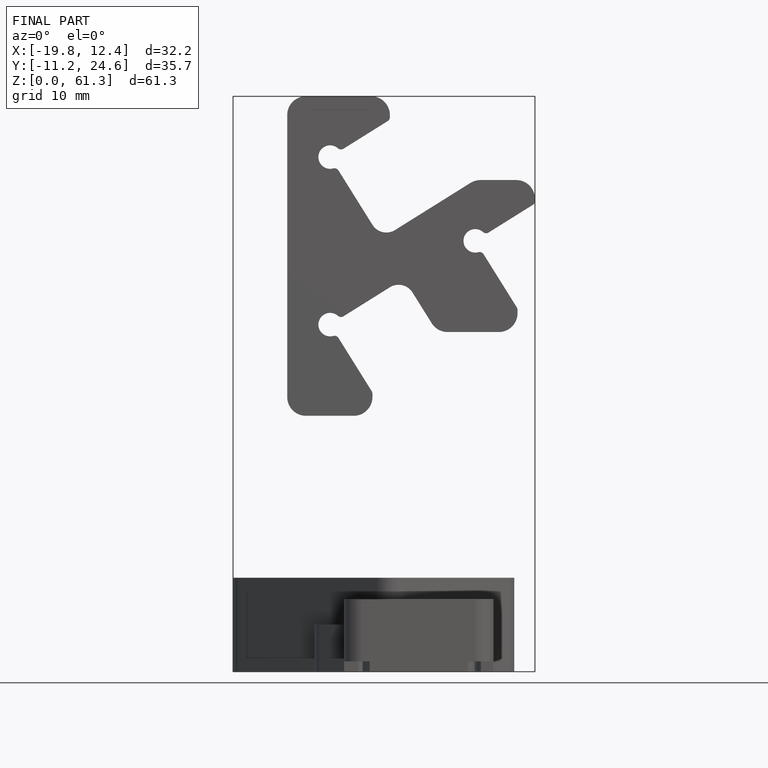
[diagram: finished part — front view with bounding-box wireframe]
